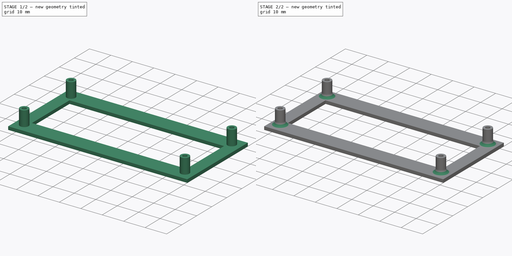
[diagram: build sequence overview — one tinted view per stage of 2, left to right]
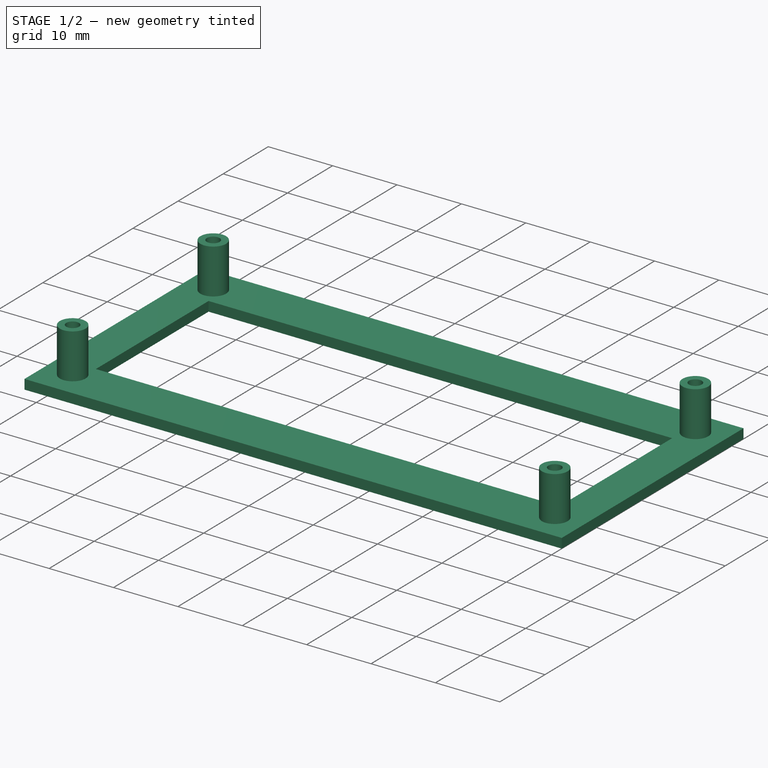
[diagram: stage 1 of 2 — iso view after this stage's code; geometry added in this stage tinted green]
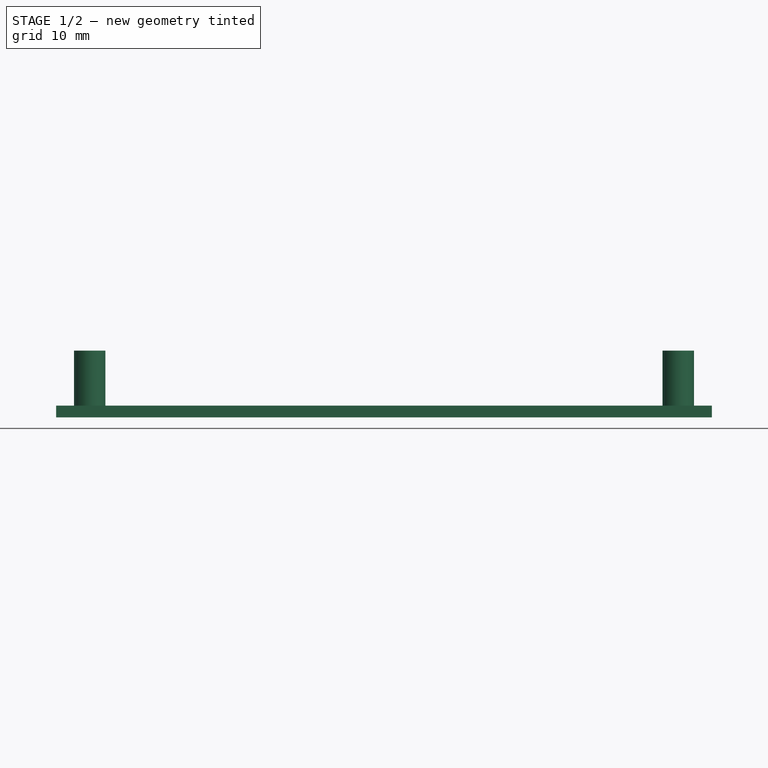
[diagram: stage 1 of 2 — front view after this stage's code; geometry added in this stage tinted green]
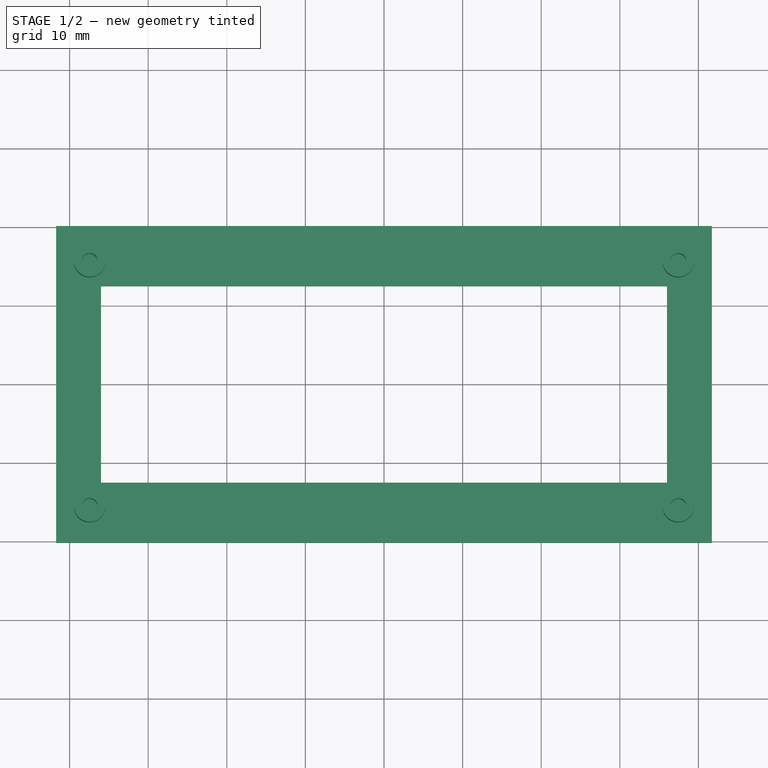
[diagram: stage 1 of 2 — top view after this stage's code; geometry added in this stage tinted green]
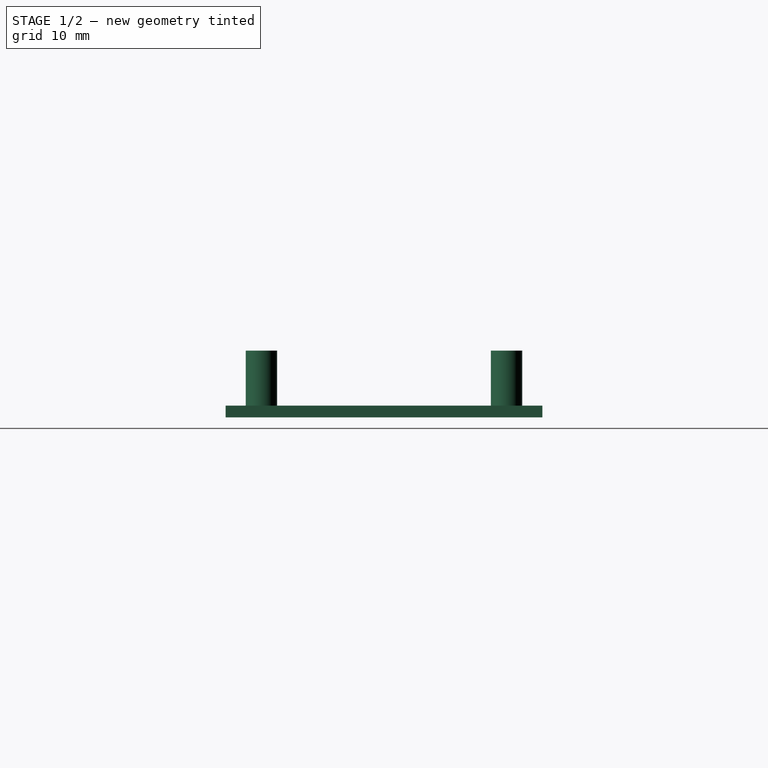
[diagram: stage 1 of 2 — right view after this stage's code; geometry added in this stage tinted green]
FCSTD DOCUMENT  (FreeCAD 0.20R29603 (Git))
Label: dinger2
License: All rights reserved
LicenseURL: http://en.wikipedia.org/wiki/All_rights_reserved
objects: Sketcher::SketchObject×2, PartDesign::Pad×2, PartDesign::Fillet×1, PartDesign::Body×1
note: 9 computed .brp shape members not serialized (recipe doc carries the construction recipe); baked Part::Feature solids carry a one-line shape summary decoded from their .brp

FEATURE [Sketcher::SketchObject] Sketch
  FullyConstrained = false
  MapMode = 5
  Support = -> [XY_Plane]
  sketch-geometry (10):
    g0: LineSegment StartX=-36 StartY=12.5 StartZ=0 EndX=-36 EndY=-12.5 EndZ=0
    g1: LineSegment StartX=-36 StartY=-12.5 StartZ=0 EndX=36 EndY=-12.5 EndZ=0
    g2: LineSegment StartX=36 StartY=-12.5 StartZ=0 EndX=36 EndY=12.5 EndZ=0
    g3: LineSegment StartX=36 StartY=12.5 StartZ=0 EndX=-36 EndY=12.5 EndZ=0
    g4: GeomPoint X=0 Y=0 Z=0
    g5: LineSegment StartX=-41.7211 StartY=20.1525 StartZ=0 EndX=-41.7211 EndY=-20.1525 EndZ=0
    g6: LineSegment StartX=-41.7211 StartY=-20.1525 StartZ=0 EndX=41.7211 EndY=-20.1525 EndZ=0
    g7: LineSegment StartX=41.7211 StartY=-20.1525 StartZ=0 EndX=41.7211 EndY=20.1525 EndZ=0
    g8: LineSegment StartX=41.7211 StartY=20.1525 StartZ=0 EndX=-41.7211 EndY=20.1525 EndZ=0
    g9: GeomPoint X=0 Y=0 Z=0
  constraints (22):
    c: Coincident(g0,g1)
    c: Coincident(g1,g2)
    c: Coincident(g2,g3)
    c: Coincident(g3,g0)
    c: Horizontal(g1)
    c: Horizontal(g3)
    c: Vertical(g0)
    c: Vertical(g2)
    c: Symmetric(g1,g0,g4)
    c: Coincident(g4,g-1)
    c: DistanceX(g3,g3) = 72
    c: DistanceY(g2,g2) = 25
    c: Coincident(g5,g6)
    c: Coincident(g6,g7)
    c: Coincident(g7,g8)
    c: Coincident(g8,g5)
    c: Horizontal(g6)
    c: Horizontal(g8)
    c: Vertical(g5)
    c: Vertical(g7)
    c: Symmetric(g6,g5,g9)
    c: Coincident(g9,g4)
FEATURE [Sketcher::SketchObject] Sketch001
  FullyConstrained = true
  MapMode = 5
  Support = -> [XY_Plane]
  sketch-geometry (10):
    g0: GeomPoint X=0 Y=0 Z=0
    g1: Circle CenterX=-37.44 CenterY=15.59 CenterZ=0 NormalX=0 NormalY=0 NormalZ=1 AngleXU=0 Radius=1
    g2: Circle CenterX=37.44 CenterY=15.59 CenterZ=0 NormalX=0 NormalY=0 NormalZ=1 AngleXU=0 Radius=1
    g3: Circle CenterX=-37.44 CenterY=-15.59 CenterZ=0 NormalX=0 NormalY=0 NormalZ=1 AngleXU=0 Radius=1
    g4: Circle CenterX=37.44 CenterY=-15.59 CenterZ=0 NormalX=0 NormalY=0 NormalZ=1 AngleXU=0 Radius=1
    g5: GeomPoint X=0 Y=0 Z=0
    g6: Circle CenterX=-37.44 CenterY=15.59 CenterZ=0 NormalX=0 NormalY=0 NormalZ=1 AngleXU=0 Radius=2
    g7: Circle CenterX=-37.44 CenterY=-15.59 CenterZ=0 NormalX=0 NormalY=0 NormalZ=1 AngleXU=0 Radius=2
    g8: Circle CenterX=37.44 CenterY=-15.59 CenterZ=0 NormalX=0 NormalY=0 NormalZ=1 AngleXU=0 Radius=2
    g9: Circle CenterX=37.44 CenterY=15.59 CenterZ=0 NormalX=0 NormalY=0 NormalZ=1 AngleXU=0 Radius=2
  constraints (19):
    c: Coincident(g0,g-1)
    c: Symmetric(g1,g2,g-2)
    c: DistanceX(g1,g2) = 74.88
    c: Symmetric(g1,g3,g-1)
    c: DistanceY(g3,g1) = 31.18
    c: Symmetric(g4,g3,g-2)
    c: Equal(g3,g1)
    c: Equal(g1,g4)
    c: Equal(g4,g2)
    c: Coincident(g5,g0)
    c: Coincident(g6,g1)
    c: Coincident(g7,g3)
    c: Coincident(g8,g4)
    c: Coincident(g9,g2)
    c: Equal(g9,g8)
    c: Equal(g8,g7)
    c: Equal(g7,g6)
    c: Diameter(g6) = 4
    c: Diameter(g1) = 2
FEATURE [PartDesign::Pad] Pad
  Direction = (0,0,1)
  Length = 1.5
  Length2 = 10
  Profile = -> Sketch
  ReferenceAxis = -> Sketch [N_Axis]
  Type = 0
FEATURE [PartDesign::Pad] Pad001
  BaseFeature = -> Pad
  Direction = (0,0,1)
  Length = 8.5
  Length2 = 10
  Profile = -> Sketch001
  ReferenceAxis = -> Sketch001 [N_Axis]
  Type = 0
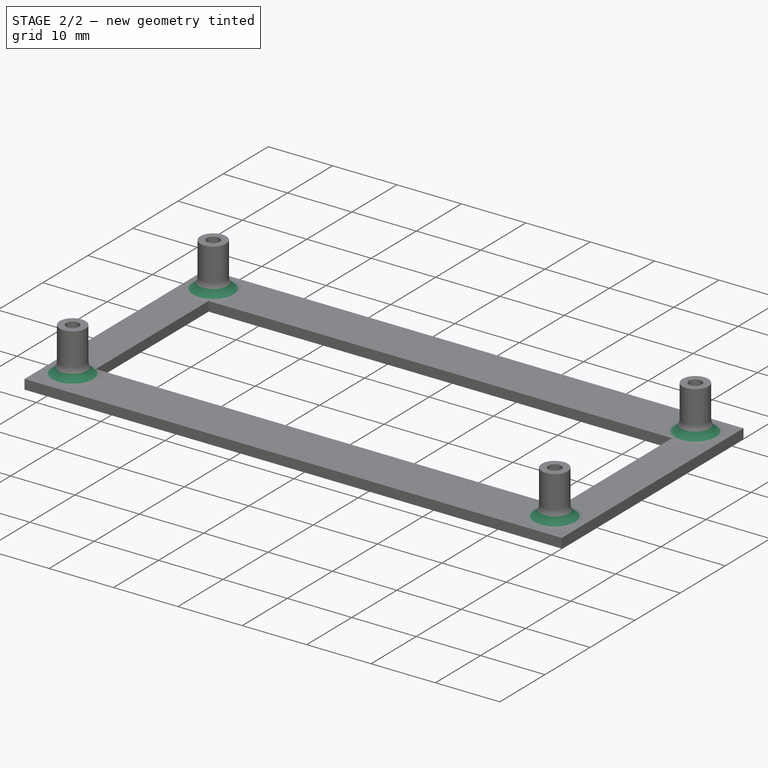
[diagram: stage 2 of 2 — iso view after this stage's code; geometry added in this stage tinted green]
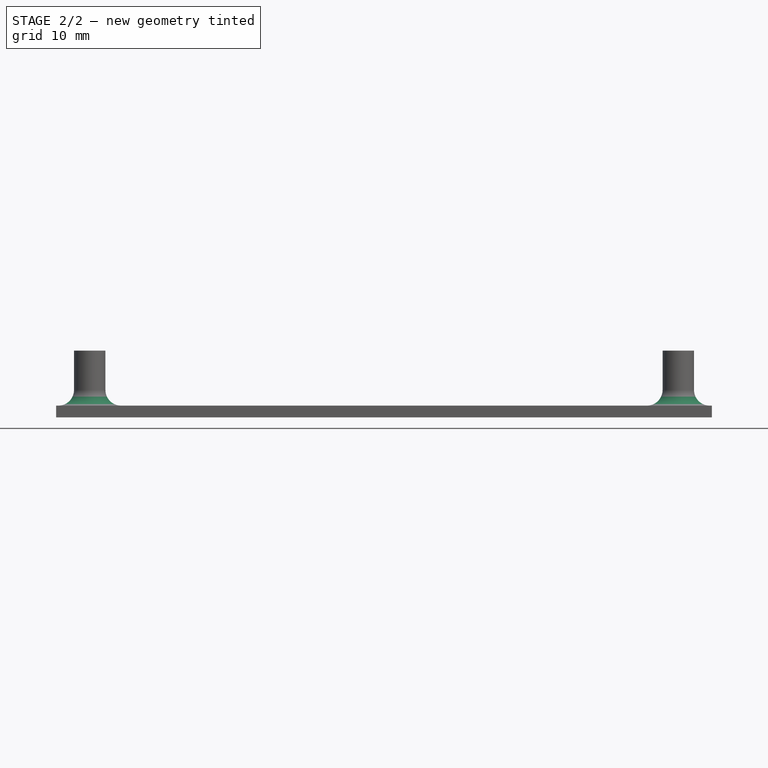
[diagram: stage 2 of 2 — front view after this stage's code; geometry added in this stage tinted green]
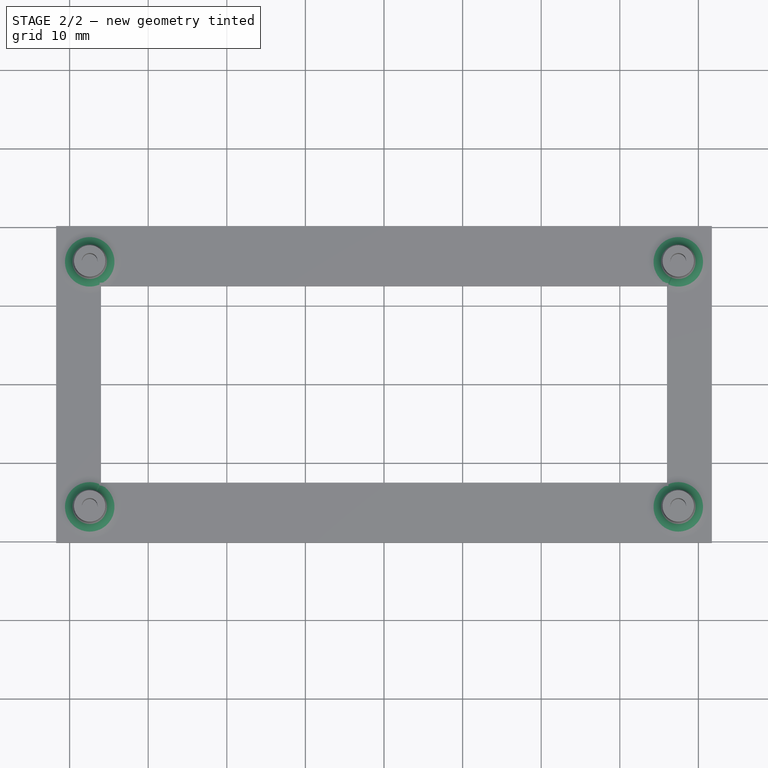
[diagram: stage 2 of 2 — top view after this stage's code; geometry added in this stage tinted green]
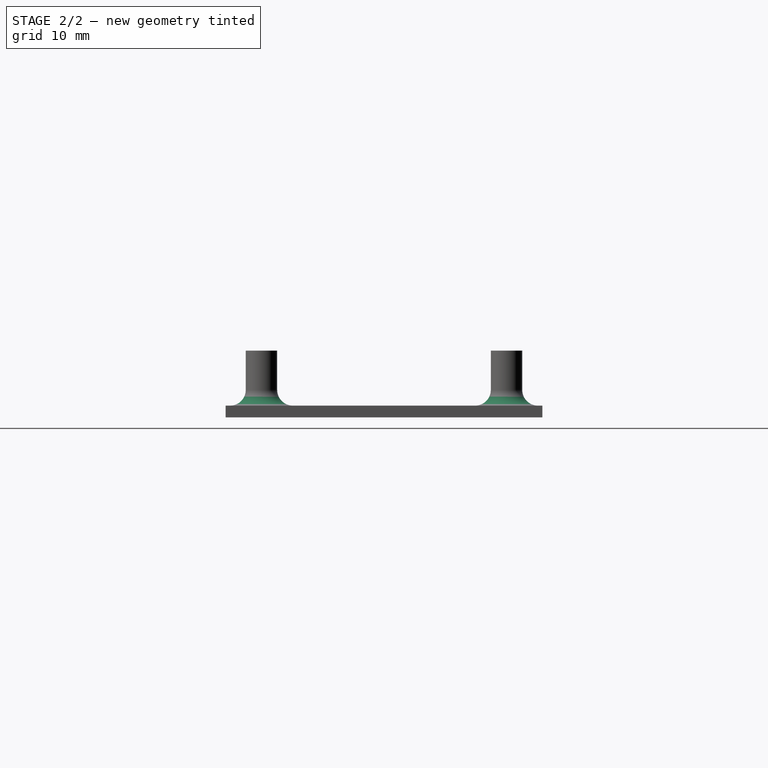
[diagram: stage 2 of 2 — right view after this stage's code; geometry added in this stage tinted green]
FEATURE [PartDesign::Fillet] Fillet
  Base = -> Pad001 [Edge27,Edge28,Edge22,Edge21]
  BaseFeature = -> Pad001
  Radius = 2
  SupportTransform = false
  UseAllEdges = false
FEATURE [PartDesign::Body] Body
  Group = -> [Sketch,Sketch001,Pad,Pad001,Fillet]
  Origin = -> Origin
  Tip = -> Fillet
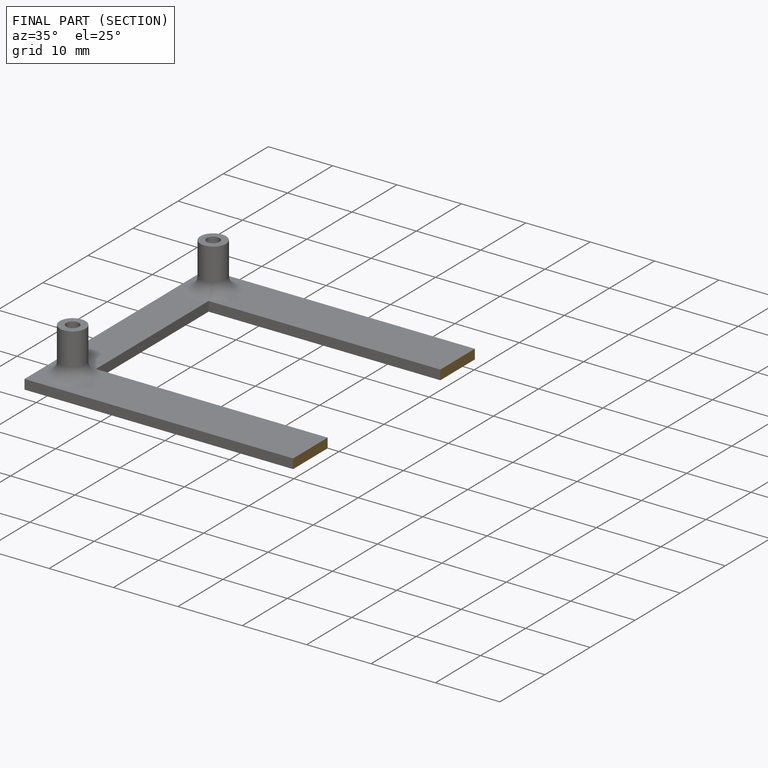
[diagram: finished part — half-section view (interior)]
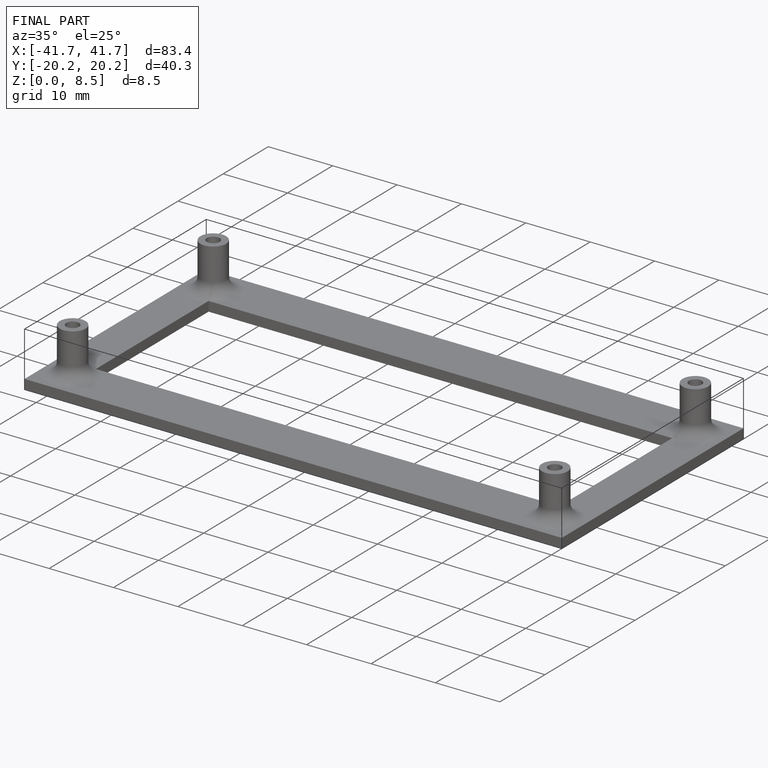
[diagram: finished part — iso view with bounding-box wireframe]
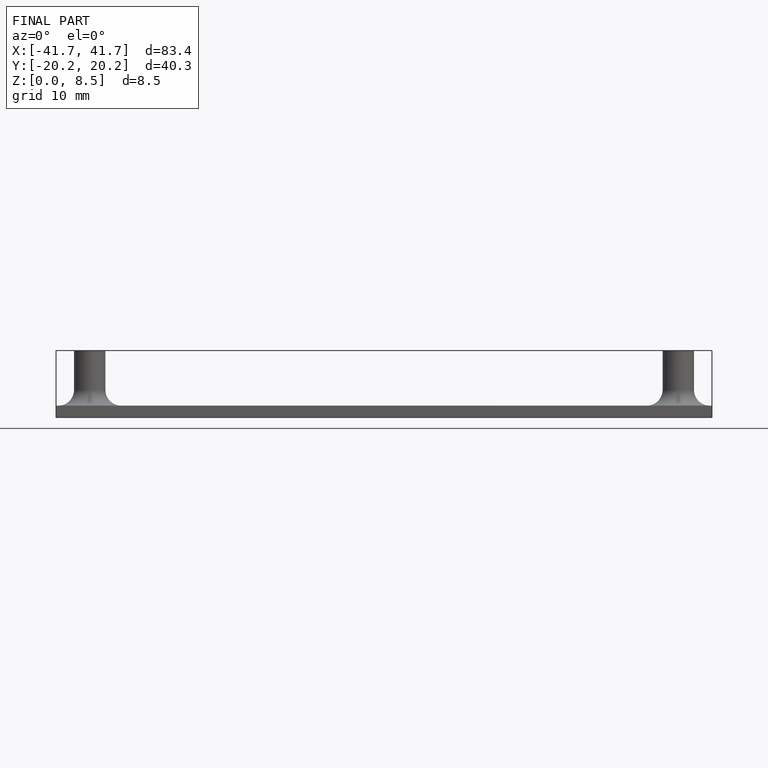
[diagram: finished part — front view with bounding-box wireframe]
